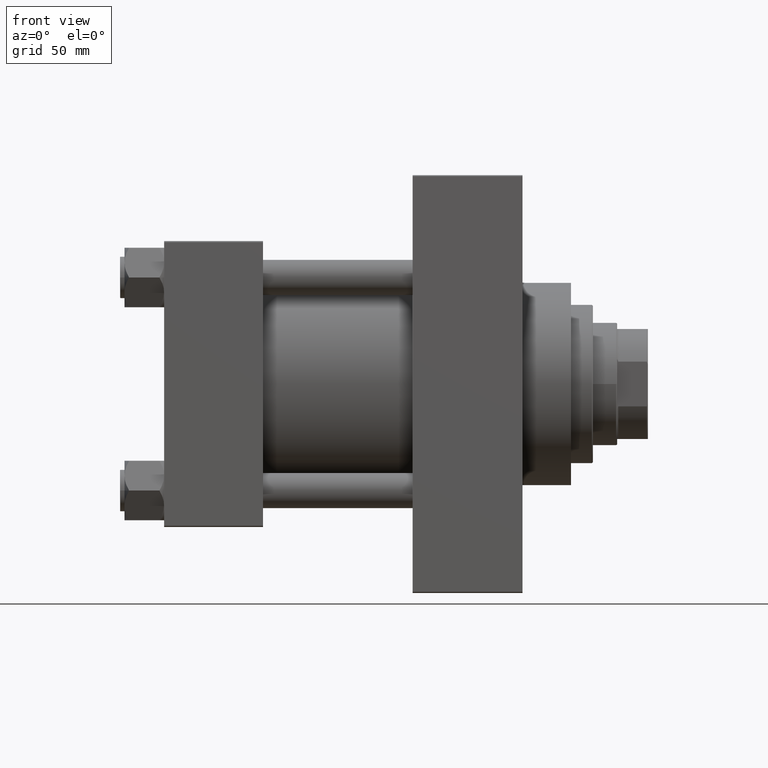
[diagram: clean part render]
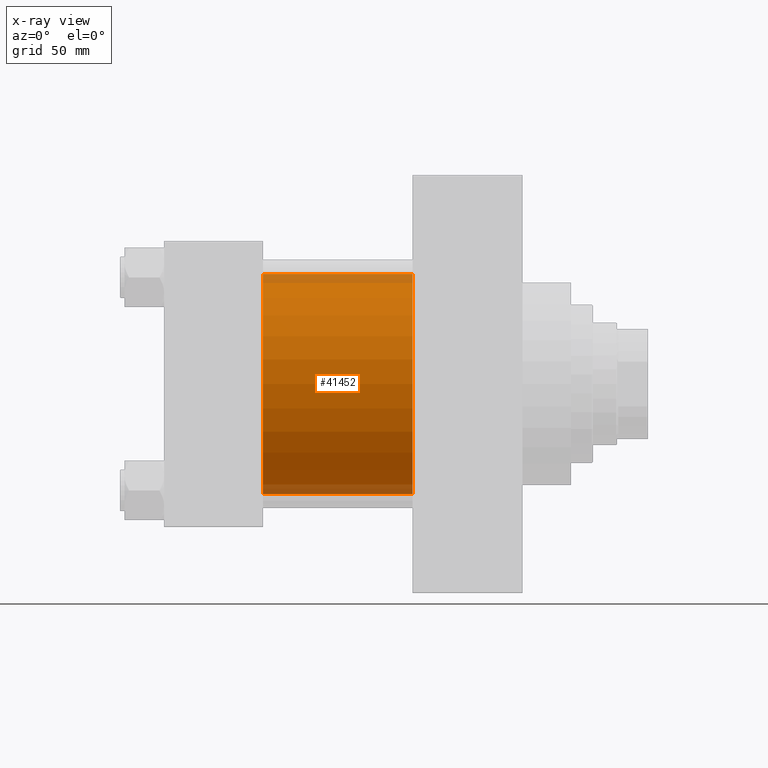
[diagram: x-ray — body ghosted, one internal face saturated and labeled with its STEP entity id]
A machine part, front view, then the same camera in x-ray: the body is ghosted and one INTERNAL B-rep face — a face not visible from any outside direction — is saturated and labeled: STEP entity #41452.
In plain terms, the highlighted cylindrical surface (partial cylindrical patch) has radius 50 mm, axis along (-1, -0, -0).
Its self-contained STEP definition (entity closure, byte-faithful):
#3129 = EDGE_CURVE ( 'NONE', #5738, #44638, #15137, .T. ) ;
#3856 = DIRECTION ( 'NONE',  ( -1.000000000000000000, -0.000000000000000000, -0.000000000000000000 ) ) ;
#5738 = VERTEX_POINT ( 'NONE', #15598 ) ;
#6090 = DIRECTION ( 'NONE',  ( 0.000000000000000000, 0.000000000000000000, -1.000000000000000000 ) ) ;
#6565 = DIRECTION ( 'NONE',  ( 1.000000000000000000, 0.000000000000000000, 0.000000000000000000 ) ) ;
#7202 = EDGE_CURVE ( 'NONE', #44638, #45287, #13015, .T. ) ;
#7474 = LINE ( 'NONE', #17871, #20611 ) ;
#7792 = CYLINDRICAL_SURFACE ( 'NONE', #17608, 50.00000000000000000 ) ;
#10513 = AXIS2_PLACEMENT_3D ( 'NONE', #19639, #41852, #16489 ) ;
#11176 = FACE_OUTER_BOUND ( 'NONE', #18272, .T. ) ;
#13015 = LINE ( 'NONE', #34989, #42152 ) ;
#13059 = ORIENTED_EDGE ( 'NONE', *, *, #7202, .T. ) ;
#14581 = CIRCLE ( 'NONE', #46210, 50.00000000000000000 ) ;
#15137 = CIRCLE ( 'NONE', #10513, 50.00000000000000000 ) ;
#15598 = CARTESIAN_POINT ( 'NONE',  ( 113.0000000000000000, -2.602085213965210642E-15, 50.00000000000000000 ) ) ;
#16489 = DIRECTION ( 'NONE',  ( 0.000000000000000000, 0.000000000000000000, -1.000000000000000000 ) ) ;
#17608 = AXIS2_PLACEMENT_3D ( 'NONE', #36545, #30247, #40619 ) ;
#17871 = CARTESIAN_POINT ( 'NONE',  ( 113.0000000000000000, -2.602085213965210642E-15, 50.00000000000000000 ) ) ;
#18272 = EDGE_LOOP ( 'NONE', ( #43158, #13059, #23801, #19692 ) ) ;
#19639 = CARTESIAN_POINT ( 'NONE',  ( 113.0000000000000000, -2.602085213965210642E-15, 0.000000000000000000 ) ) ;
#19692 = ORIENTED_EDGE ( 'NONE', *, *, #34811, .F. ) ;
#20611 = VECTOR ( 'NONE', #3856, 1000.000000000000000 ) ;
#23801 = ORIENTED_EDGE ( 'NONE', *, *, #43329, .F. ) ;
#28093 = CARTESIAN_POINT ( 'NONE',  ( 45.00000000000000000, 3.521148781771555838E-15, -50.00000000000000000 ) ) ;
#30247 = DIRECTION ( 'NONE',  ( -1.000000000000000000, -0.000000000000000000, -0.000000000000000000 ) ) ;
#33795 = CARTESIAN_POINT ( 'NONE',  ( 45.00000000000000000, -2.602085213965210642E-15, 50.00000000000000000 ) ) ;
#34811 = EDGE_CURVE ( 'NONE', #5738, #34858, #7474, .T. ) ;
#34858 = VERTEX_POINT ( 'NONE', #33795 ) ;
#34989 = CARTESIAN_POINT ( 'NONE',  ( 113.0000000000000000, 3.521148781771555838E-15, -50.00000000000000000 ) ) ;
#36545 = CARTESIAN_POINT ( 'NONE',  ( 113.0000000000000000, -2.602085213965210642E-15, 0.000000000000000000 ) ) ;
#37648 = CARTESIAN_POINT ( 'NONE',  ( 113.0000000000000000, 3.521148781771555838E-15, -50.00000000000000000 ) ) ;
#38142 = DIRECTION ( 'NONE',  ( -1.000000000000000000, -0.000000000000000000, -0.000000000000000000 ) ) ;
#40619 = DIRECTION ( 'NONE',  ( 0.000000000000000000, 0.000000000000000000, 1.000000000000000000 ) ) ;
#41452 = ADVANCED_FACE ( 'NONE', ( #11176 ), #7792, .F. ) ;
#41852 = DIRECTION ( 'NONE',  ( 1.000000000000000000, 0.000000000000000000, 0.000000000000000000 ) ) ;
#42152 = VECTOR ( 'NONE', #38142, 1000.000000000000000 ) ;
#43158 = ORIENTED_EDGE ( 'NONE', *, *, #3129, .T. ) ;
#43264 = CARTESIAN_POINT ( 'NONE',  ( 45.00000000000000000, -2.602085213965210642E-15, 0.000000000000000000 ) ) ;
#43329 = EDGE_CURVE ( 'NONE', #34858, #45287, #14581, .T. ) ;
#44638 = VERTEX_POINT ( 'NONE', #37648 ) ;
#45287 = VERTEX_POINT ( 'NONE', #28093 ) ;
#46210 = AXIS2_PLACEMENT_3D ( 'NONE', #43264, #6565, #6090 ) ;